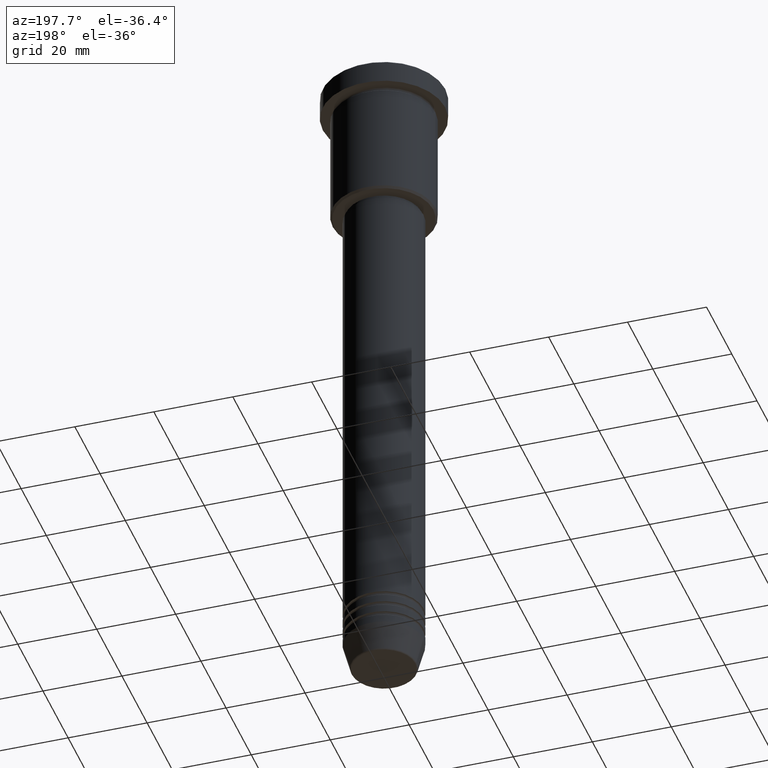
[diagram: clean part render]
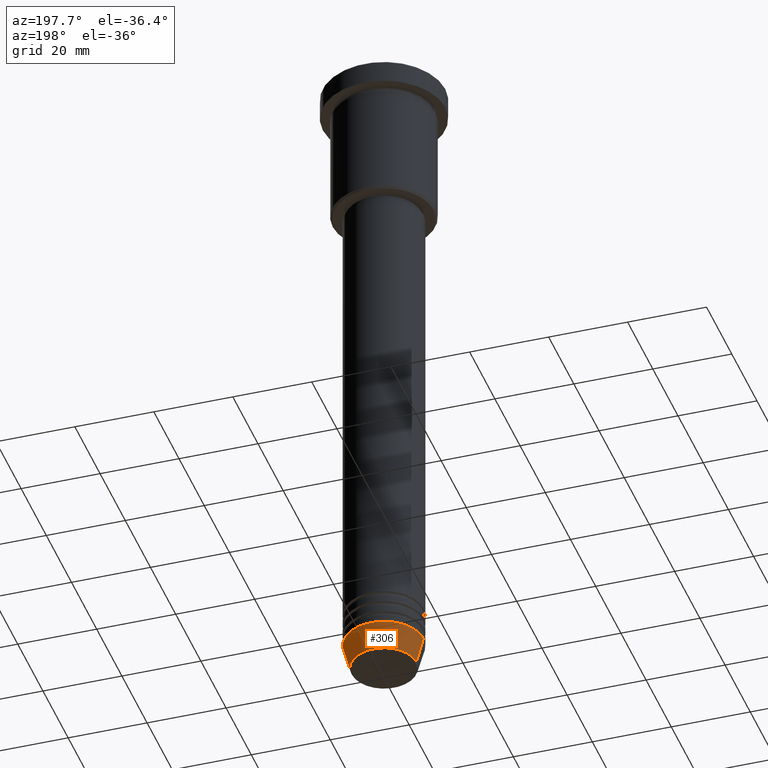
[diagram: same view with one face highlighted and labeled with its STEP entity id]
A machine part, auxiliary view. The second image highlights one B-rep face of the part: STEP entity #306.
In plain terms, the highlighted conical surface has half-angle 15 deg.
Its self-contained STEP definition (entity closure, byte-faithful):
#29 = EDGE_CURVE ( 'NONE', #482, #519, #146, .T. ) ;
#30 = VERTEX_POINT ( 'NONE', #322 ) ;
#65 = CONICAL_SURFACE ( 'NONE', #795, 10.00000000000000000, 0.2617993877991500740 ) ;
#117 = CARTESIAN_POINT ( 'NONE',  ( -10.00000000000000000, 1.224646799147353256E-15, -164.0000000000000000 ) ) ;
#146 = LINE ( 'NONE', #514, #878 ) ;
#177 = CARTESIAN_POINT ( 'NONE',  ( -10.00000000000000000, 1.224646799147353256E-15, -164.0000000000000000 ) ) ;
#197 = VERTEX_POINT ( 'NONE', #117 ) ;
#224 = DIRECTION ( 'NONE',  ( -0.000000000000000000, -0.000000000000000000, 1.000000000000000000 ) ) ;
#254 = DIRECTION ( 'NONE',  ( -0.000000000000000000, -0.000000000000000000, 1.000000000000000000 ) ) ;
#276 = AXIS2_PLACEMENT_3D ( 'NONE', #487, #389, #590 ) ;
#287 = ORIENTED_EDGE ( 'NONE', *, *, #532, .T. ) ;
#306 = ADVANCED_FACE ( 'NONE', ( #1110 ), #65, .T. ) ;
#322 = CARTESIAN_POINT ( 'NONE',  ( -8.223655072137198374, 1.115877042642912448E-15, -170.6294095225512422 ) ) ;
#372 = ORIENTED_EDGE ( 'NONE', *, *, #29, .F. ) ;
#389 = DIRECTION ( 'NONE',  ( -0.000000000000000000, -0.000000000000000000, 1.000000000000000000 ) ) ;
#397 = EDGE_CURVE ( 'NONE', #482, #30, #995, .T. ) ;
#416 = EDGE_LOOP ( 'NONE', ( #960, #287, #670, #372 ) ) ;
#482 = VERTEX_POINT ( 'NONE', #1144 ) ;
#487 = CARTESIAN_POINT ( 'NONE',  ( 0.000000000000000000, 0.000000000000000000, -170.6294095225512422 ) ) ;
#514 = CARTESIAN_POINT ( 'NONE',  ( 10.00000000000000000, 0.000000000000000000, -164.0000000000000000 ) ) ;
#519 = VERTEX_POINT ( 'NONE', #1020 ) ;
#532 = EDGE_CURVE ( 'NONE', #30, #197, #640, .T. ) ;
#560 = DIRECTION ( 'NONE',  ( 1.000000000000000000, 0.000000000000000000, 0.000000000000000000 ) ) ;
#590 = DIRECTION ( 'NONE',  ( 1.000000000000000000, 0.000000000000000000, 0.000000000000000000 ) ) ;
#621 = CIRCLE ( 'NONE', #1034, 10.00000000000000000 ) ;
#640 = LINE ( 'NONE', #177, #901 ) ;
#670 = ORIENTED_EDGE ( 'NONE', *, *, #1069, .F. ) ;
#691 = DIRECTION ( 'NONE',  ( 1.000000000000000000, 0.000000000000000000, 0.000000000000000000 ) ) ;
#763 = CARTESIAN_POINT ( 'NONE',  ( 0.000000000000000000, 0.000000000000000000, -164.0000000000000000 ) ) ;
#795 = AXIS2_PLACEMENT_3D ( 'NONE', #898, #254, #560 ) ;
#825 = DIRECTION ( 'NONE',  ( -0.2588190451025213501, 3.169619151431772337E-17, 0.9659258262890680902 ) ) ;
#878 = VECTOR ( 'NONE', #886, 1000.000000000000000 ) ;
#886 = DIRECTION ( 'NONE',  ( 0.2588190451025213501, 0.000000000000000000, 0.9659258262890680902 ) ) ;
#898 = CARTESIAN_POINT ( 'NONE',  ( 0.000000000000000000, 0.000000000000000000, -164.0000000000000000 ) ) ;
#901 = VECTOR ( 'NONE', #825, 1000.000000000000000 ) ;
#960 = ORIENTED_EDGE ( 'NONE', *, *, #397, .T. ) ;
#995 = CIRCLE ( 'NONE', #276, 8.223655072137198374 ) ;
#1020 = CARTESIAN_POINT ( 'NONE',  ( 10.00000000000000000, 0.000000000000000000, -164.0000000000000000 ) ) ;
#1034 = AXIS2_PLACEMENT_3D ( 'NONE', #763, #224, #691 ) ;
#1069 = EDGE_CURVE ( 'NONE', #519, #197, #621, .T. ) ;
#1110 = FACE_OUTER_BOUND ( 'NONE', #416, .T. ) ;
#1144 = CARTESIAN_POINT ( 'NONE',  ( 8.223655072137198374, 0.000000000000000000, -170.6294095225512422 ) ) ;